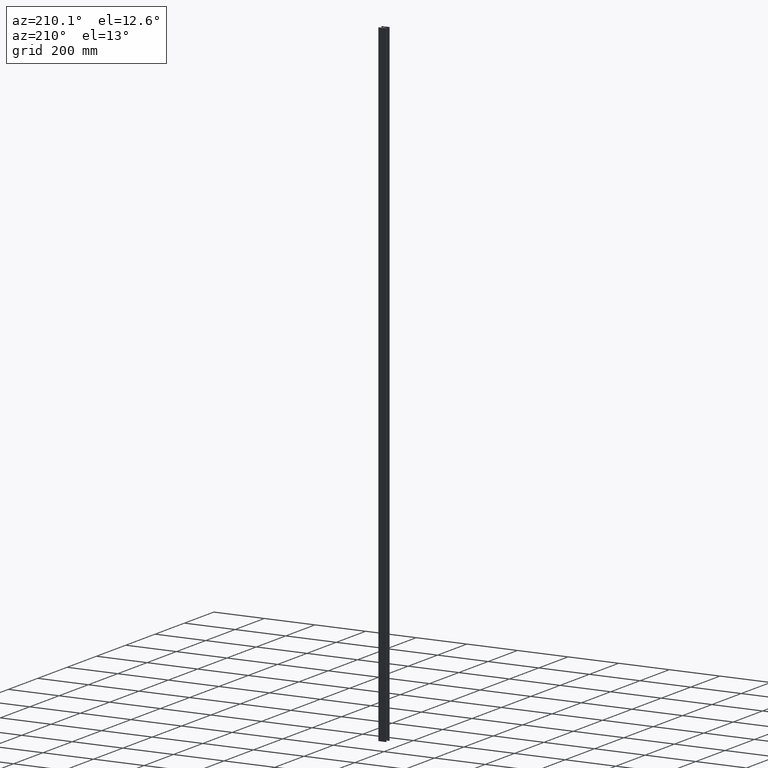
[diagram: clean part render]
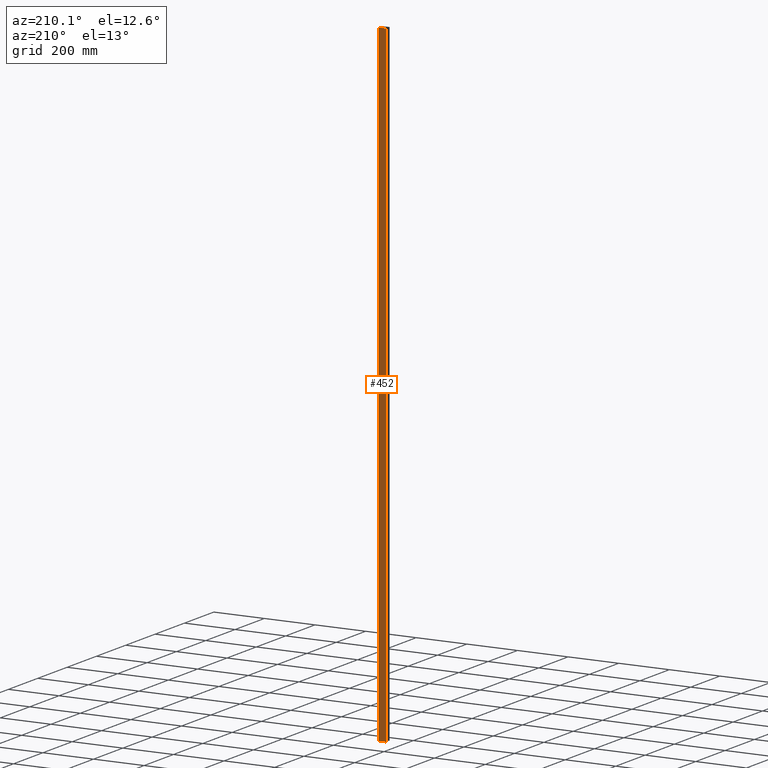
[diagram: same view with one face highlighted and labeled with its STEP entity id]
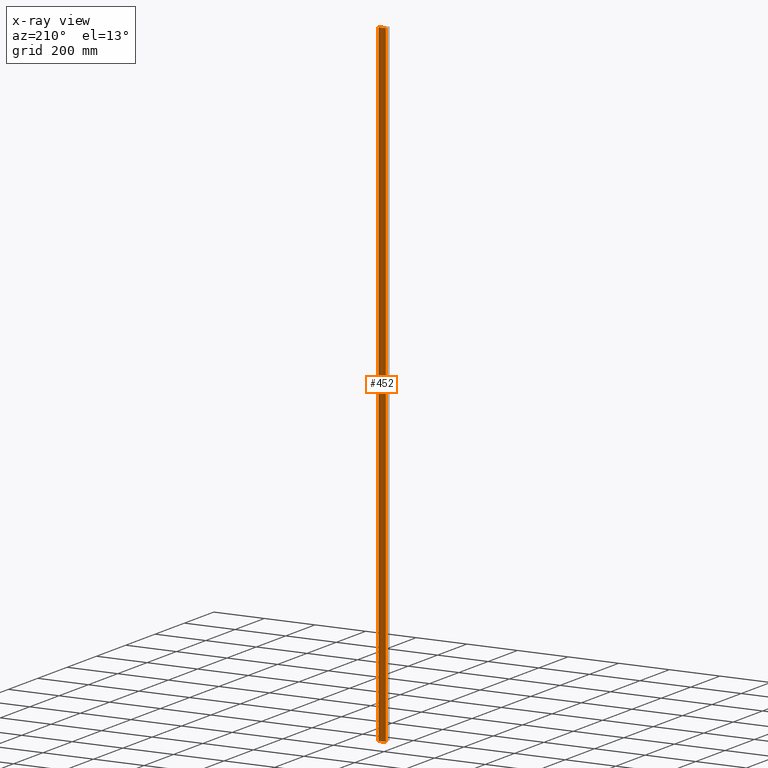
[diagram: x-ray of the same camera — body ghosted, the highlighted face saturated]
A machine part, auxiliary view. The second image highlights one B-rep face of the part: STEP entity #452.
The next image is the same camera in x-ray: the body ghosted, the highlighted face saturated — about 0% of this face is hidden behind the body in this view.
In plain terms, the highlighted planar face has unit normal (0, -1, 0).
Its self-contained STEP definition (entity closure, byte-faithful):
#37 = DIRECTION ( 'NONE',  ( -1.000000000000000000, 0.0000000000000000000, 0.0000000000000000000 ) ) ;
#39 = VECTOR ( 'NONE', #543, 1000.000000000000000 ) ;
#52 = CARTESIAN_POINT ( 'NONE',  ( 14.70000000000000300, 12.49999999999999600, -1250.000000000000000 ) ) ;
#91 = EDGE_CURVE ( 'NONE', #355, #553, #851, .T. ) ;
#116 = VERTEX_POINT ( 'NONE', #899 ) ;
#130 = CARTESIAN_POINT ( 'NONE',  ( 14.70000000000000300, 12.49999999999999600, 1250.000000000000000 ) ) ;
#136 = CARTESIAN_POINT ( 'NONE',  ( -14.70000000000000300, 12.49999999999999600, 1250.000000000000000 ) ) ;
#148 = DIRECTION ( 'NONE',  ( -0.0000000000000000000, -0.0000000000000000000, -1.000000000000000000 ) ) ;
#164 = ORIENTED_EDGE ( 'NONE', *, *, #857, .T. ) ;
#192 = CARTESIAN_POINT ( 'NONE',  ( -14.70000000000000300, 12.49999999999999600, 1250.000000000000000 ) ) ;
#223 = DIRECTION ( 'NONE',  ( -1.000000000000000000, 0.0000000000000000000, 0.0000000000000000000 ) ) ;
#333 = ORIENTED_EDGE ( 'NONE', *, *, #907, .T. ) ;
#337 = DIRECTION ( 'NONE',  ( 0.0000000000000000000, -0.0000000000000000000, -1.000000000000000000 ) ) ;
#340 = DIRECTION ( 'NONE',  ( 0.0000000000000000000, -1.000000000000000000, 0.0000000000000000000 ) ) ;
#343 = CARTESIAN_POINT ( 'NONE',  ( 14.70000000000000300, 12.49999999999999600, 1250.000000000000000 ) ) ;
#344 = PLANE ( 'NONE',  #352 ) ;
#349 = FACE_OUTER_BOUND ( 'NONE', #548, .T. ) ;
#352 = AXIS2_PLACEMENT_3D ( 'NONE', #343, #340, #337 ) ;
#355 = VERTEX_POINT ( 'NONE', #530 ) ;
#444 = VECTOR ( 'NONE', #223, 1000.000000000000000 ) ;
#452 = ADVANCED_FACE ( 'NONE', ( #349 ), #344, .F. ) ;
#464 = ORIENTED_EDGE ( 'NONE', *, *, #91, .F. ) ;
#530 = CARTESIAN_POINT ( 'NONE',  ( 14.70000000000000300, 12.49999999999999600, 1250.000000000000000 ) ) ;
#543 = DIRECTION ( 'NONE',  ( -0.0000000000000000000, -0.0000000000000000000, -1.000000000000000000 ) ) ;
#548 = EDGE_LOOP ( 'NONE', ( #333, #664, #464, #164 ) ) ;
#553 = VERTEX_POINT ( 'NONE', #192 ) ;
#557 = CARTESIAN_POINT ( 'NONE',  ( 14.70000000000000300, 12.49999999999999600, 1250.000000000000000 ) ) ;
#582 = VECTOR ( 'NONE', #148, 1000.000000000000000 ) ;
#620 = LINE ( 'NONE', #136, #39 ) ;
#637 = VERTEX_POINT ( 'NONE', #52 ) ;
#664 = ORIENTED_EDGE ( 'NONE', *, *, #705, .F. ) ;
#702 = CARTESIAN_POINT ( 'NONE',  ( 14.70000000000000300, 12.49999999999999600, -1250.000000000000000 ) ) ;
#705 = EDGE_CURVE ( 'NONE', #553, #116, #620, .T. ) ;
#851 = LINE ( 'NONE', #130, #872 ) ;
#857 = EDGE_CURVE ( 'NONE', #355, #637, #919, .T. ) ;
#872 = VECTOR ( 'NONE', #37, 1000.000000000000000 ) ;
#880 = LINE ( 'NONE', #702, #444 ) ;
#899 = CARTESIAN_POINT ( 'NONE',  ( -14.70000000000000300, 12.49999999999999600, -1250.000000000000000 ) ) ;
#907 = EDGE_CURVE ( 'NONE', #637, #116, #880, .T. ) ;
#919 = LINE ( 'NONE', #557, #582 ) ;